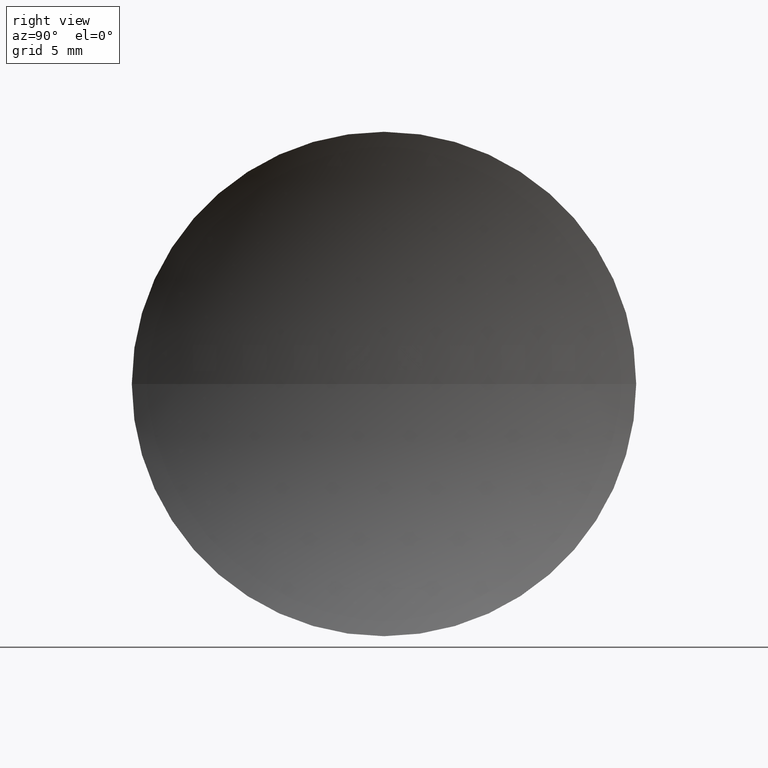
[diagram: clean part render]
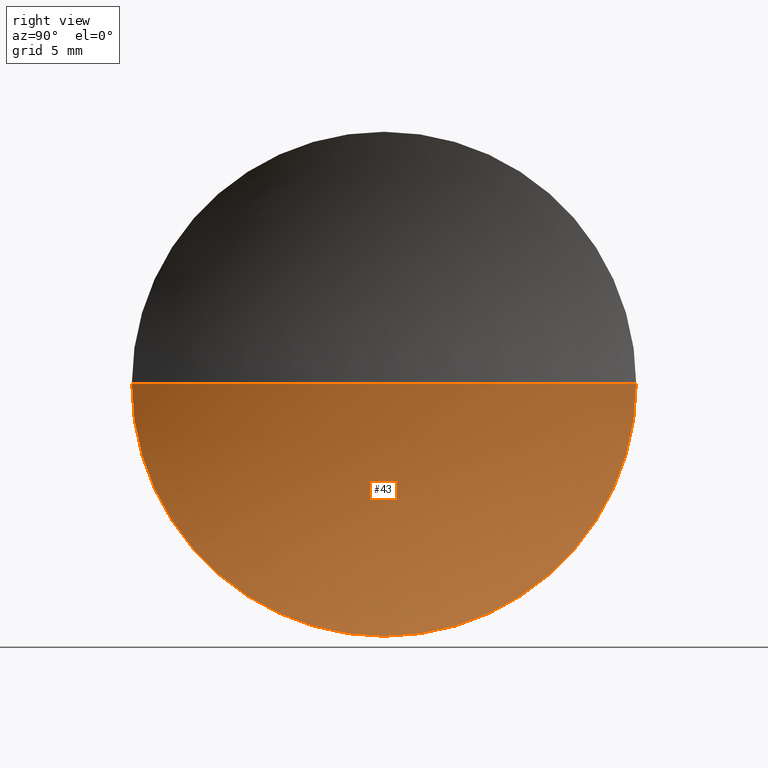
[diagram: same view with one face highlighted and labeled with its STEP entity id]
A machine part, right view. The second image highlights one B-rep face of the part: STEP entity #43.
In plain terms, the highlighted spherical surface has radius 27.82 mm.
Its self-contained STEP definition (entity closure, byte-faithful):
#1 = DIRECTION ( 'NONE',  ( 0.0000000000000000000, 0.0000000000000000000, 1.000000000000000000 ) ) ;
#8 = DIRECTION ( 'NONE',  ( 0.0000000000000000000, 1.000000000000000000, 1.224646799147353000E-016 ) ) ;
#11 = EDGE_CURVE ( 'NONE', #197, #229, #186, .T. ) ;
#20 = CARTESIAN_POINT ( 'NONE',  ( 124.1706853466884300, 65.22260287298739500, 0.0000000000000000000 ) ) ;
#22 = CIRCLE ( 'NONE', #195, 27.82000000000001100 ) ;
#23 = CARTESIAN_POINT ( 'NONE',  ( 124.1706853466884300, 52.52260287298737800, -1.555301434917138400E-015 ) ) ;
#24 = CARTESIAN_POINT ( 'NONE',  ( 124.1706853466884300, 65.22260287298739500, -12.70000000000000100 ) ) ;
#31 = SPHERICAL_SURFACE ( 'NONE', #152, 27.82000000000000700 ) ;
#32 = ORIENTED_EDGE ( 'NONE', *, *, #11, .F. ) ;
#36 = DIRECTION ( 'NONE',  ( 0.0000000000000000000, 0.0000000000000000000, -1.000000000000000000 ) ) ;
#38 = DIRECTION ( 'NONE',  ( -1.000000000000000000, -0.0000000000000000000, -0.0000000000000000000 ) ) ;
#39 = AXIS2_PLACEMENT_3D ( 'NONE', #223, #182, #8 ) ;
#43 = ADVANCED_FACE ( 'NONE', ( #108 ), #31, .F. ) ;
#46 = EDGE_CURVE ( 'NONE', #105, #69, #22, .T. ) ;
#53 = CARTESIAN_POINT ( 'NONE',  ( 148.9227034462293200, 65.22260287298738000, 0.0000000000000000000 ) ) ;
#55 = EDGE_CURVE ( 'NONE', #105, #197, #139, .T. ) ;
#60 = CARTESIAN_POINT ( 'NONE',  ( 124.1706853466884300, 77.92260287298739700, 0.0000000000000000000 ) ) ;
#69 = VERTEX_POINT ( 'NONE', #161 ) ;
#72 = CARTESIAN_POINT ( 'NONE',  ( 148.9227034462293200, 65.22260287298738000, 0.0000000000000000000 ) ) ;
#77 = DIRECTION ( 'NONE',  ( -1.000000000000000000, -0.0000000000000000000, -0.0000000000000000000 ) ) ;
#94 = AXIS2_PLACEMENT_3D ( 'NONE', #20, #38, #219 ) ;
#105 = VERTEX_POINT ( 'NONE', #60 ) ;
#108 = FACE_OUTER_BOUND ( 'NONE', #153, .T. ) ;
#113 = DIRECTION ( 'NONE',  ( 0.0000000000000000000, 1.000000000000000000, 0.0000000000000000000 ) ) ;
#123 = AXIS2_PLACEMENT_3D ( 'NONE', #181, #77, #1 ) ;
#128 = ORIENTED_EDGE ( 'NONE', *, *, #137, .F. ) ;
#134 = ORIENTED_EDGE ( 'NONE', *, *, #55, .F. ) ;
#137 = EDGE_CURVE ( 'NONE', #229, #69, #191, .T. ) ;
#139 = CIRCLE ( 'NONE', #94, 12.70000000000000300 ) ;
#144 = DIRECTION ( 'NONE',  ( 0.0000000000000000000, 0.0000000000000000000, 1.000000000000000000 ) ) ;
#152 = AXIS2_PLACEMENT_3D ( 'NONE', #72, #36, #113 ) ;
#153 = EDGE_LOOP ( 'NONE', ( #128, #32, #134, #204 ) ) ;
#161 = CARTESIAN_POINT ( 'NONE',  ( 121.1027034462293100, 65.22260287298738000, 0.0000000000000000000 ) ) ;
#177 = DIRECTION ( 'NONE',  ( 1.000000000000000000, 0.0000000000000000000, 0.0000000000000000000 ) ) ;
#181 = CARTESIAN_POINT ( 'NONE',  ( 124.1706853466884300, 65.22260287298739500, 0.0000000000000000000 ) ) ;
#182 = DIRECTION ( 'NONE',  ( 0.0000000000000000000, 1.224646799147353200E-016, -1.000000000000000000 ) ) ;
#186 = CIRCLE ( 'NONE', #123, 12.70000000000000300 ) ;
#191 = CIRCLE ( 'NONE', #39, 27.82000000000001100 ) ;
#195 = AXIS2_PLACEMENT_3D ( 'NONE', #53, #144, #177 ) ;
#197 = VERTEX_POINT ( 'NONE', #24 ) ;
#204 = ORIENTED_EDGE ( 'NONE', *, *, #46, .T. ) ;
#219 = DIRECTION ( 'NONE',  ( 0.0000000000000000000, 0.0000000000000000000, 1.000000000000000000 ) ) ;
#223 = CARTESIAN_POINT ( 'NONE',  ( 148.9227034462293200, 65.22260287298738000, 0.0000000000000000000 ) ) ;
#229 = VERTEX_POINT ( 'NONE', #23 ) ;